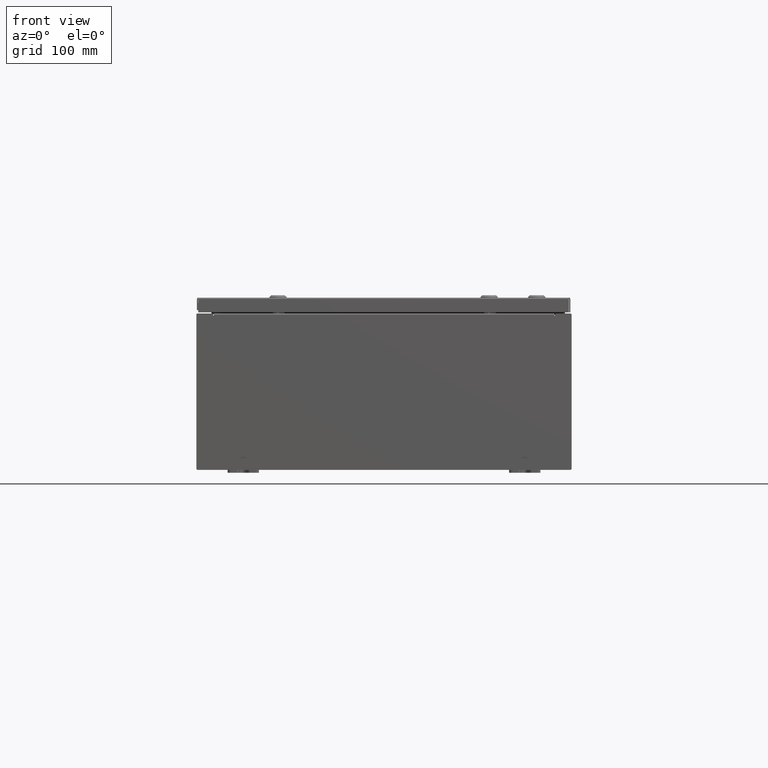
[diagram: clean part render]
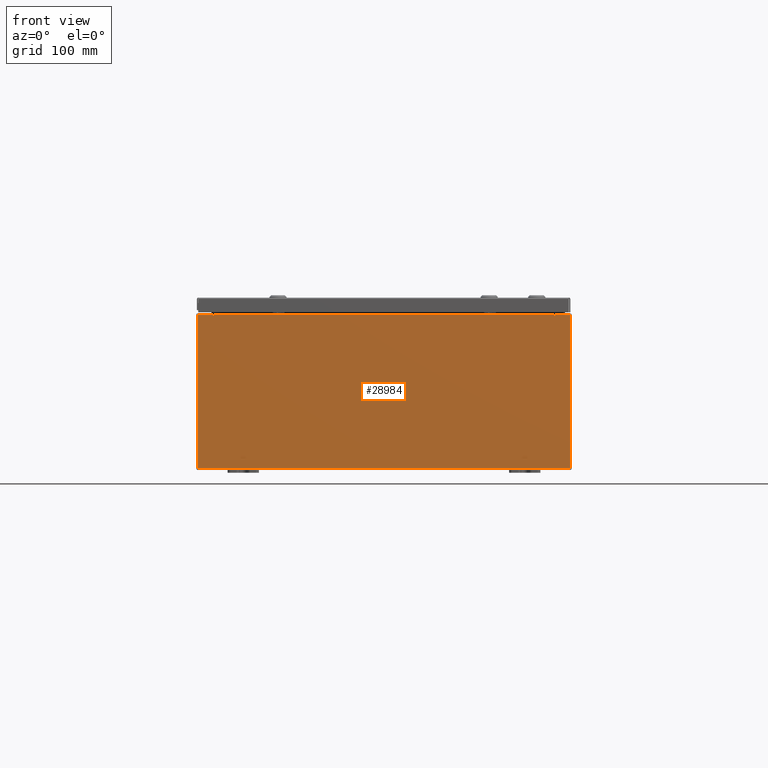
[diagram: same view with one face highlighted and labeled with its STEP entity id]
A machine part, front view. The second image highlights one B-rep face of the part: STEP entity #28984.
In plain terms, the highlighted planar face has unit normal (-0, 1, -0).
Its self-contained STEP definition (entity closure, byte-faithful):
#57 = ORIENTED_EDGE ( 'NONE', *, *, #41185, .F. ) ;
#1038 = DIRECTION ( 'NONE',  ( 0.0000000000000000000, -1.000000000000000000, 0.0000000000000000000 ) ) ;
#1535 = CARTESIAN_POINT ( 'NONE',  ( 10.92455000000000000, 0.0000000000000000000, 4.874950000000000100 ) ) ;
#2158 = ORIENTED_EDGE ( 'NONE', *, *, #11150, .T. ) ;
#2463 = VERTEX_POINT ( 'NONE', #59898 ) ;
#3273 = CARTESIAN_POINT ( 'NONE',  ( -10.90587500000000000, 0.0000000000000000000, 4.874950000000000100 ) ) ;
#4286 = CARTESIAN_POINT ( 'NONE',  ( -10.92454999999999800, 0.0000000000000000000, 4.874950000000000100 ) ) ;
#4516 = AXIS2_PLACEMENT_3D ( 'NONE', #46134, #1038, #26390 ) ;
#5276 = DIRECTION ( 'NONE',  ( 0.0000000000000000000, 0.0000000000000000000, -1.000000000000000000 ) ) ;
#5725 = VECTOR ( 'NONE', #46140, 39.37007874015748100 ) ;
#6519 = VERTEX_POINT ( 'NONE', #28200 ) ;
#7242 = CIRCLE ( 'NONE', #49890, 0.01867499999999949400 ) ;
#7255 = DIRECTION ( 'NONE',  ( 0.0000000000000000000, 0.0000000000000000000, 1.000000000000000000 ) ) ;
#7538 = LINE ( 'NONE', #48437, #45691 ) ;
#8330 = DIRECTION ( 'NONE',  ( 0.0000000000000000000, 0.0000000000000000000, -1.000000000000000000 ) ) ;
#8878 = LINE ( 'NONE', #11359, #5725 ) ;
#9008 = LINE ( 'NONE', #18701, #48697 ) ;
#9107 = VECTOR ( 'NONE', #52990, 39.37007874015748100 ) ;
#10240 = VERTEX_POINT ( 'NONE', #16924 ) ;
#10952 = EDGE_CURVE ( 'NONE', #32016, #25022, #30102, .T. ) ;
#11072 = FACE_OUTER_BOUND ( 'NONE', #49006, .T. ) ;
#11150 = EDGE_CURVE ( 'NONE', #53748, #21205, #9008, .T. ) ;
#11359 = CARTESIAN_POINT ( 'NONE',  ( -11.92530000000000000, 0.0000000000000000000, -4.925300000000000000 ) ) ;
#11533 = EDGE_CURVE ( 'NONE', #41472, #16838, #39383, .T. ) ;
#11852 = LINE ( 'NONE', #27306, #26671 ) ;
#12118 = LINE ( 'NONE', #30197, #19092 ) ;
#13244 = EDGE_CURVE ( 'NONE', #17499, #2463, #8878, .T. ) ;
#13701 = DIRECTION ( 'NONE',  ( 1.000000000000000000, 0.0000000000000000000, 0.0000000000000000000 ) ) ;
#14400 = ORIENTED_EDGE ( 'NONE', *, *, #39303, .T. ) ;
#15182 = DIRECTION ( 'NONE',  ( -4.340572780400004900E-014, 0.0000000000000000000, -1.000000000000000000 ) ) ;
#15972 = CARTESIAN_POINT ( 'NONE',  ( -11.92530000000000000, 0.0000000000000000000, 4.925300000000000000 ) ) ;
#16838 = VERTEX_POINT ( 'NONE', #45059 ) ;
#16924 = CARTESIAN_POINT ( 'NONE',  ( -10.88720000000000000, -7.171100983368691200E-016, 4.912300000000000100 ) ) ;
#17499 = VERTEX_POINT ( 'NONE', #39355 ) ;
#18701 = CARTESIAN_POINT ( 'NONE',  ( -11.92530000000000000, 0.0000000000000000000, 4.925300000000000000 ) ) ;
#19092 = VECTOR ( 'NONE', #5276, 39.37007874015748100 ) ;
#19687 = DIRECTION ( 'NONE',  ( 0.0000000000000000000, 0.0000000000000000000, 1.000000000000000000 ) ) ;
#20852 = EDGE_CURVE ( 'NONE', #40692, #25022, #35795, .T. ) ;
#21190 = DIRECTION ( 'NONE',  ( 1.000000000000000000, 0.0000000000000000000, 0.0000000000000000000 ) ) ;
#21205 = VERTEX_POINT ( 'NONE', #52356 ) ;
#21280 = EDGE_CURVE ( 'NONE', #10240, #6519, #22379, .T. ) ;
#21377 = EDGE_CURVE ( 'NONE', #10240, #24583, #7538, .T. ) ;
#21378 = PLANE ( 'NONE',  #4516 ) ;
#21644 = EDGE_CURVE ( 'NONE', #53748, #41472, #24717, .T. ) ;
#22379 = LINE ( 'NONE', #23270, #9107 ) ;
#23270 = CARTESIAN_POINT ( 'NONE',  ( -10.88720000000000000, -0.0000000000000000000, 0.0000000000000000000 ) ) ;
#24583 = VERTEX_POINT ( 'NONE', #58462 ) ;
#24717 = LINE ( 'NONE', #30211, #62754 ) ;
#25022 = VERTEX_POINT ( 'NONE', #38068 ) ;
#25656 = CARTESIAN_POINT ( 'NONE',  ( 10.90587500000000200, 0.0000000000000000000, 4.874950000000000100 ) ) ;
#26390 = DIRECTION ( 'NONE',  ( 0.0000000000000000000, -0.0000000000000000000, -1.000000000000000000 ) ) ;
#26671 = VECTOR ( 'NONE', #7255, 39.37007874015748100 ) ;
#27006 = AXIS2_PLACEMENT_3D ( 'NONE', #25656, #60426, #30665 ) ;
#27306 = CARTESIAN_POINT ( 'NONE',  ( 10.88720000000000200, 0.0000000000000000000, 0.0000000000000000000 ) ) ;
#28200 = CARTESIAN_POINT ( 'NONE',  ( -10.88720000000000000, -0.0000000000000000000, 4.874950000000000100 ) ) ;
#28370 = ORIENTED_EDGE ( 'NONE', *, *, #20852, .F. ) ;
#28972 = ORIENTED_EDGE ( 'NONE', *, *, #59383, .F. ) ;
#28984 = ADVANCED_FACE ( 'NONE', ( #11072 ), #21378, .F. ) ;
#29476 = CARTESIAN_POINT ( 'NONE',  ( -10.92454999999999800, -0.0000000000000000000, 0.0000000000000000000 ) ) ;
#30102 = LINE ( 'NONE', #45951, #54977 ) ;
#30197 = CARTESIAN_POINT ( 'NONE',  ( 11.92530000000000000, 0.0000000000000000000, 4.925300000000000000 ) ) ;
#30211 = CARTESIAN_POINT ( 'NONE',  ( 10.92454999999978900, -0.0000000000000000000, -4.741880436811796300E-013 ) ) ;
#30665 = DIRECTION ( 'NONE',  ( 0.0000000000000000000, 0.0000000000000000000, -1.000000000000000000 ) ) ;
#32016 = VERTEX_POINT ( 'NONE', #47890 ) ;
#32181 = VECTOR ( 'NONE', #45741, 39.37007874015748100 ) ;
#34419 = ORIENTED_EDGE ( 'NONE', *, *, #11533, .F. ) ;
#35795 = LINE ( 'NONE', #29476, #60651 ) ;
#36516 = ORIENTED_EDGE ( 'NONE', *, *, #21280, .F. ) ;
#38068 = CARTESIAN_POINT ( 'NONE',  ( -10.92454999999999800, 0.0000000000000000000, 4.925300000000000000 ) ) ;
#38173 = DIRECTION ( 'NONE',  ( -0.0000000000000000000, 1.000000000000000000, -0.0000000000000000000 ) ) ;
#39303 = EDGE_CURVE ( 'NONE', #21205, #17499, #12118, .T. ) ;
#39355 = CARTESIAN_POINT ( 'NONE',  ( 11.92530000000000000, 0.0000000000000000000, -4.925300000000000000 ) ) ;
#39383 = CIRCLE ( 'NONE', #27006, 0.01867499999999949400 ) ;
#40692 = VERTEX_POINT ( 'NONE', #4286 ) ;
#41026 = CARTESIAN_POINT ( 'NONE',  ( 10.92455000000000000, 0.0000000000000000000, 4.925300000000000000 ) ) ;
#41185 = EDGE_CURVE ( 'NONE', #6519, #40692, #7242, .T. ) ;
#41472 = VERTEX_POINT ( 'NONE', #1535 ) ;
#42253 = DIRECTION ( 'NONE',  ( 1.000000000000000000, 0.0000000000000000000, 0.0000000000000000000 ) ) ;
#43022 = ORIENTED_EDGE ( 'NONE', *, *, #49952, .T. ) ;
#45059 = CARTESIAN_POINT ( 'NONE',  ( 10.88720000000000200, 0.0000000000000000000, 4.874950000000000100 ) ) ;
#45691 = VECTOR ( 'NONE', #13701, 39.37007874015748100 ) ;
#45741 = DIRECTION ( 'NONE',  ( -0.0000000000000000000, -0.0000000000000000000, 1.000000000000000000 ) ) ;
#45951 = CARTESIAN_POINT ( 'NONE',  ( -11.92530000000000000, 0.0000000000000000000, 4.925300000000000000 ) ) ;
#46134 = CARTESIAN_POINT ( 'NONE',  ( 0.0000000000000000000, 0.0000000000000000000, 0.0000000000000000000 ) ) ;
#46140 = DIRECTION ( 'NONE',  ( -1.000000000000000000, -0.0000000000000000000, -0.0000000000000000000 ) ) ;
#47890 = CARTESIAN_POINT ( 'NONE',  ( -11.92530000000000000, 0.0000000000000000000, 4.925300000000000000 ) ) ;
#48437 = CARTESIAN_POINT ( 'NONE',  ( -10.88720000000000200, -7.171100983368691200E-016, 4.912300000000000100 ) ) ;
#48573 = ORIENTED_EDGE ( 'NONE', *, *, #21644, .F. ) ;
#48697 = VECTOR ( 'NONE', #42253, 39.37007874015748100 ) ;
#49006 = EDGE_LOOP ( 'NONE', ( #28370, #57, #36516, #53819, #28972, #34419, #48573, #2158, #14400, #63203, #43022, #59011 ) ) ;
#49890 = AXIS2_PLACEMENT_3D ( 'NONE', #3273, #38173, #8330 ) ;
#49952 = EDGE_CURVE ( 'NONE', #2463, #32016, #60177, .T. ) ;
#52356 = CARTESIAN_POINT ( 'NONE',  ( 11.92530000000000000, 0.0000000000000000000, 4.925300000000000000 ) ) ;
#52990 = DIRECTION ( 'NONE',  ( 0.0000000000000000000, 0.0000000000000000000, -1.000000000000000000 ) ) ;
#53748 = VERTEX_POINT ( 'NONE', #41026 ) ;
#53819 = ORIENTED_EDGE ( 'NONE', *, *, #21377, .T. ) ;
#54977 = VECTOR ( 'NONE', #21190, 39.37007874015748100 ) ;
#58462 = CARTESIAN_POINT ( 'NONE',  ( 10.88720000000000200, 0.0000000000000000000, 4.912300000000000100 ) ) ;
#59011 = ORIENTED_EDGE ( 'NONE', *, *, #10952, .T. ) ;
#59383 = EDGE_CURVE ( 'NONE', #16838, #24583, #11852, .T. ) ;
#59898 = CARTESIAN_POINT ( 'NONE',  ( -11.92530000000000000, 0.0000000000000000000, -4.925300000000000000 ) ) ;
#60177 = LINE ( 'NONE', #15972, #32181 ) ;
#60426 = DIRECTION ( 'NONE',  ( -0.0000000000000000000, 1.000000000000000000, -0.0000000000000000000 ) ) ;
#60651 = VECTOR ( 'NONE', #19687, 39.37007874015748100 ) ;
#62754 = VECTOR ( 'NONE', #15182, 39.37007874015748100 ) ;
#63203 = ORIENTED_EDGE ( 'NONE', *, *, #13244, .T. ) ;